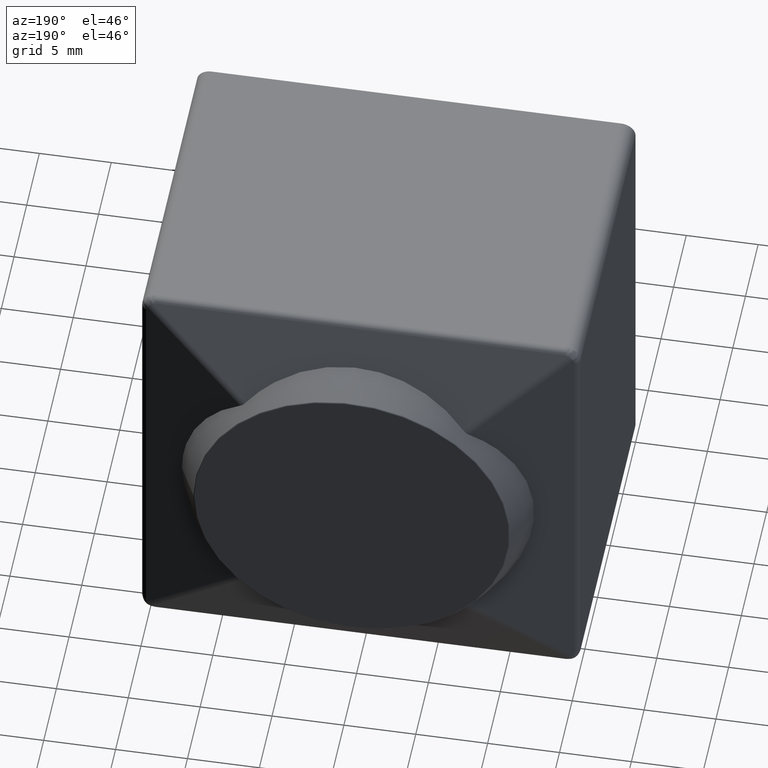
[diagram: clean part render]
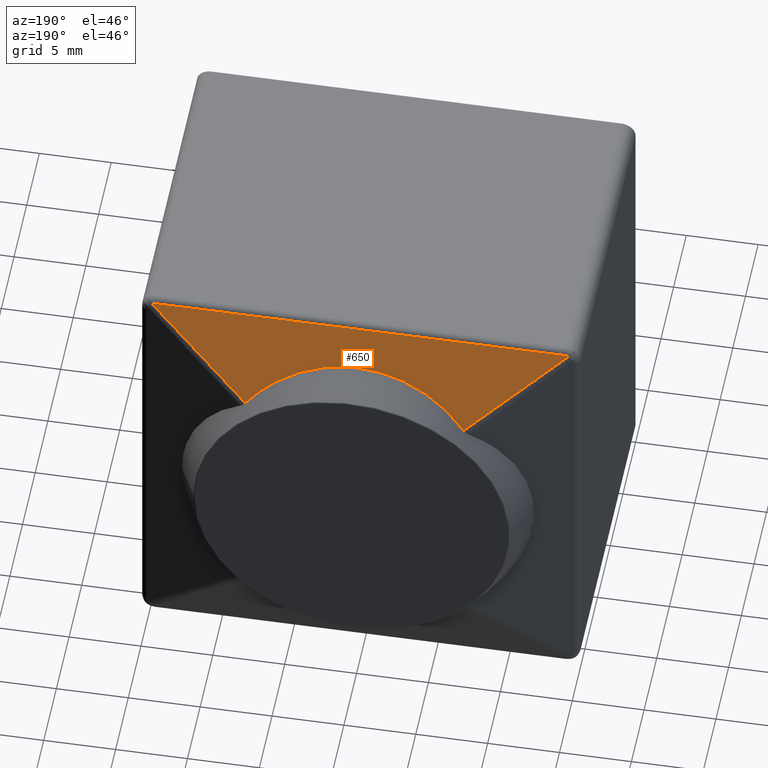
[diagram: same view with one face highlighted and labeled with its STEP entity id]
A machine part, auxiliary view. The second image highlights one B-rep face of the part: STEP entity #650.
In plain terms, the highlighted planar face has unit normal (0, 0.9377, 0.3473).
Its self-contained STEP definition (entity closure, byte-faithful):
#52=ELLIPSE('',#672,10.960727991767,10.1006300433551);
#65=ELLIPSE('',#708,0.533191853662517,0.5);
#67=ELLIPSE('',#720,0.533191853662518,0.5);
#130=FACE_OUTER_BOUND('',#174,.T.);
#174=EDGE_LOOP('',(#561,#562,#563,#564,#565,#566));
#212=LINE('',#1275,#252);
#217=LINE('',#1288,#257);
#218=LINE('',#1292,#258);
#252=VECTOR('',#869,9.53599925715729);
#257=VECTOR('',#882,28.5);
#258=VECTOR('',#887,9.53599925715729);
#275=VERTEX_POINT('',#952);
#276=VERTEX_POINT('',#959);
#305=VERTEX_POINT('',#1211);
#308=VERTEX_POINT('',#1216);
#314=VERTEX_POINT('',#1287);
#315=VERTEX_POINT('',#1291);
#337=EDGE_CURVE('',#275,#276,#52,.T.);
#386=EDGE_CURVE('',#308,#305,#65,.T.);
#393=EDGE_CURVE('',#276,#308,#212,.T.);
#399=EDGE_CURVE('',#305,#314,#217,.T.);
#401=EDGE_CURVE('',#315,#275,#218,.T.);
#402=EDGE_CURVE('',#314,#315,#67,.T.);
#561=ORIENTED_EDGE('',*,*,#386,.F.);
#562=ORIENTED_EDGE('',*,*,#393,.F.);
#563=ORIENTED_EDGE('',*,*,#337,.F.);
#564=ORIENTED_EDGE('',*,*,#401,.F.);
#565=ORIENTED_EDGE('',*,*,#402,.F.);
#566=ORIENTED_EDGE('',*,*,#399,.F.);
#615=PLANE('',#719);
#650=ADVANCED_FACE('',(#130),#615,.T.);
#672=AXIS2_PLACEMENT_3D('',#960,#768,#769);
#708=AXIS2_PLACEMENT_3D('',#1218,#856,#857);
#719=AXIS2_PLACEMENT_3D('',#1290,#885,#886);
#720=AXIS2_PLACEMENT_3D('',#1293,#888,#889);
#768=DIRECTION('center_axis',(0.,0.937748760723704,0.347314355823594));
#769=DIRECTION('ref_axis',(-8.37078263944015E-16,0.347314355823594,-0.937748760723704));
#856=DIRECTION('center_axis',(0.,-0.937748760723704,-0.347314355823594));
#857=DIRECTION('ref_axis',(-2.60277566367291E-16,-0.347314355823594,0.937748760723704));
#869=DIRECTION('',(0.721665057442093,-0.240425724361,0.6491494557747));
#882=DIRECTION('',(-1.,0.,0.));
#885=DIRECTION('center_axis',(0.,0.937748760723704,0.347314355823594));
#886=DIRECTION('ref_axis',(0.,-0.347314355823594,0.937748760723704));
#887=DIRECTION('',(0.721665057442093,0.240425724361,-0.6491494557747));
#888=DIRECTION('center_axis',(0.,-0.937748760723704,-0.347314355823594));
#889=DIRECTION('ref_axis',(-6.50693915918226E-17,-0.347314355823594,0.937748760723704));
#952=CARTESIAN_POINT('',(7.65443650010843,24.4338203005615,8.67868518848405));
#959=CARTESIAN_POINT('',(22.8455634998916,24.4338203005615,8.67868518848405));
#960=CARTESIAN_POINT('Origin',(15.25,26.9431818181818,1.90340909090909));
#1211=CARTESIAN_POINT('',(29.5,22.1208677118845,14.9236571779118));
#1216=CARTESIAN_POINT('',(29.7273609515758,22.1411207716535,14.8689739165356));
#1218=CARTESIAN_POINT('Origin',(29.5,22.3060528970697,14.4236571779118));
#1275=CARTESIAN_POINT('',(22.3905289085003,24.5854169728908,8.26937417319493));
#1287=CARTESIAN_POINT('',(1.,22.1208677118845,14.9236571779118));
#1288=CARTESIAN_POINT('',(7.625,22.1208677118845,14.9236571779118));
#1290=CARTESIAN_POINT('Origin',(0.,22.,15.25));
#1291=CARTESIAN_POINT('',(0.772639048424261,22.1411207716535,14.8689739165356));
#1292=CARTESIAN_POINT('',(7.31140845989778,24.3195390780008,8.98724448939778));
#1293=CARTESIAN_POINT('Origin',(1.,22.3060528970697,14.4236571779118));